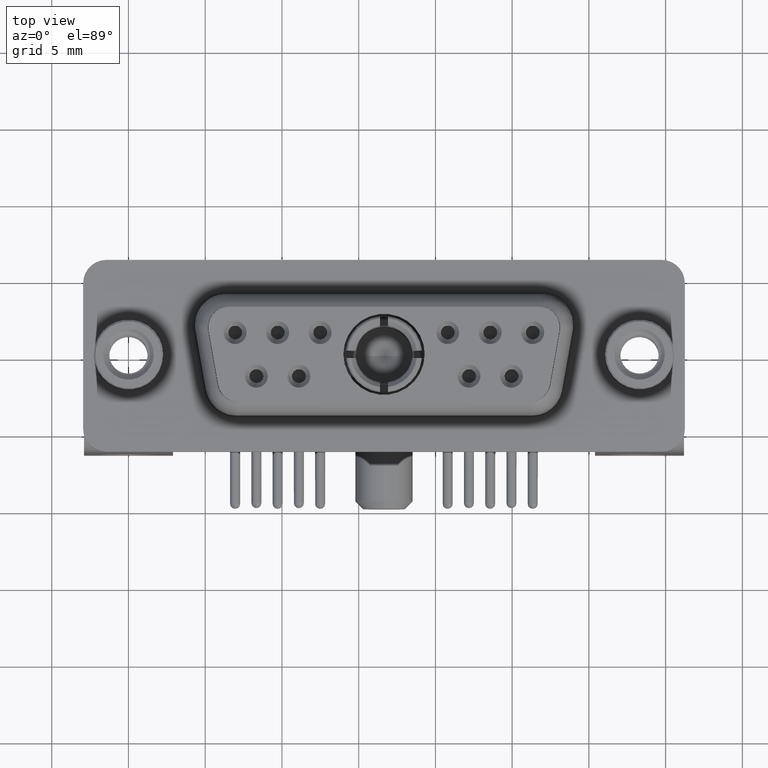
[diagram: clean part render]
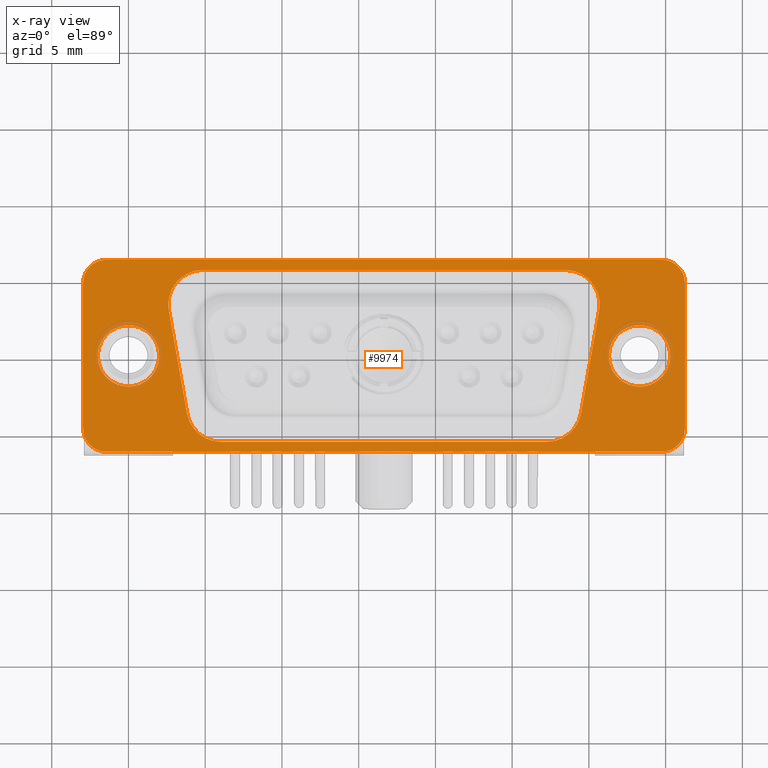
[diagram: x-ray — body ghosted, one internal face saturated and labeled with its STEP entity id]
A machine part, top view, then the same camera in x-ray: the body is ghosted and one INTERNAL B-rep face — a face not visible from any outside direction — is saturated and labeled: STEP entity #9974.
In plain terms, the highlighted planar face has unit normal (0, 0, -1).
Its self-contained STEP definition (entity closure, byte-faithful):
#34 = DIRECTION ( 'NONE',  ( 0.0000000000000000000, 0.0000000000000000000, 1.000000000000000000 ) ) ;
#319 = CARTESIAN_POINT ( 'NONE',  ( 34.75000000000000711, -6.250000000000000888, 0.0000000000000000000 ) ) ;
#365 = CARTESIAN_POINT ( 'NONE',  ( 0.0000000000000000000, 0.0000000000000000000, 0.0000000000000000000 ) ) ;
#486 = CARTESIAN_POINT ( 'NONE',  ( 2.600000000000003197, 3.350000000000004086, 0.0000000000000000000 ) ) ;
#747 = CIRCLE ( 'NONE', #9634, 1.500000000000001332 ) ;
#815 = CARTESIAN_POINT ( 'NONE',  ( 0.0000000000000000000, 0.0000000000000000000, 0.0000000000000000000 ) ) ;
#837 = FACE_OUTER_BOUND ( 'NONE', #6087, .T. ) ;
#1074 = DIRECTION ( 'NONE',  ( 1.000000000000000000, 0.0000000000000000000, 0.0000000000000000000 ) ) ;
#1125 = VERTEX_POINT ( 'NONE', #13671 ) ;
#1160 = DIRECTION ( 'NONE',  ( -0.0000000000000000000, 0.0000000000000000000, -1.000000000000000000 ) ) ;
#1331 = VERTEX_POINT ( 'NONE', #10976 ) ;
#1471 = CARTESIAN_POINT ( 'NONE',  ( -1.449999999999993072, 4.749999999999996447, 0.0000000000000000000 ) ) ;
#1534 = CARTESIAN_POINT ( 'NONE',  ( -1.449999999999993072, 6.249999999999996447, 0.0000000000000000000 ) ) ;
#1644 = VERTEX_POINT ( 'NONE', #9229 ) ;
#1733 = VECTOR ( 'NONE', #2791, 1000.000000000000000 ) ;
#1801 = DIRECTION ( 'NONE',  ( -1.000000000000000000, 0.0000000000000000000, 0.0000000000000000000 ) ) ;
#1850 = AXIS2_PLACEMENT_3D ( 'NONE', #14512, #21116, #21018 ) ;
#1894 = EDGE_CURVE ( 'NONE', #3123, #1644, #2006, .T. ) ;
#1960 = VERTEX_POINT ( 'NONE', #19482 ) ;
#2006 = CIRCLE ( 'NONE', #15710, 1.499999999999999556 ) ;
#2034 = EDGE_LOOP ( 'NONE', ( #15619, #17883 ) ) ;
#2103 = VECTOR ( 'NONE', #14890, 1000.000000000000000 ) ;
#2141 = LINE ( 'NONE', #13534, #11688 ) ;
#2173 = CARTESIAN_POINT ( 'NONE',  ( 6.031390770746672736, -5.600000000000011191, 0.0000000000000000000 ) ) ;
#2214 = VERTEX_POINT ( 'NONE', #1534 ) ;
#2340 = VERTEX_POINT ( 'NONE', #16447 ) ;
#2375 = ORIENTED_EDGE ( 'NONE', *, *, #3332, .F. ) ;
#2385 = EDGE_CURVE ( 'NONE', #4755, #17501, #2710, .T. ) ;
#2498 = DIRECTION ( 'NONE',  ( 1.000000000000000000, 0.0000000000000000000, 0.0000000000000000000 ) ) ;
#2575 = VERTEX_POINT ( 'NONE', #9578 ) ;
#2710 = CIRCLE ( 'NONE', #11634, 2.249999999999996003 ) ;
#2791 = DIRECTION ( 'NONE',  ( -1.000000000000000000, -1.437616140312271115E-16, 0.0000000000000000000 ) ) ;
#2915 = LINE ( 'NONE', #19606, #16310 ) ;
#2991 = CARTESIAN_POINT ( 'NONE',  ( 35.29999999999999005, 0.0000000000000000000, 0.0000000000000000000 ) ) ;
#3049 = ORIENTED_EDGE ( 'NONE', *, *, #12165, .T. ) ;
#3109 = ORIENTED_EDGE ( 'NONE', *, *, #9501, .F. ) ;
#3123 = VERTEX_POINT ( 'NONE', #17585 ) ;
#3215 = DIRECTION ( 'NONE',  ( 0.1736481776669248911, -0.9848077530122090195, -0.0000000000000000000 ) ) ;
#3275 = DIRECTION ( 'NONE',  ( -1.000000000000000000, 0.0000000000000000000, 0.0000000000000000000 ) ) ;
#3311 = CARTESIAN_POINT ( 'NONE',  ( -1.449999999999993072, -4.750000000000005329, 0.0000000000000000000 ) ) ;
#3330 = LINE ( 'NONE', #16410, #5159 ) ;
#3332 = EDGE_CURVE ( 'NONE', #10247, #8324, #14790, .T. ) ;
#3354 = ORIENTED_EDGE ( 'NONE', *, *, #2385, .F. ) ;
#3442 = ORIENTED_EDGE ( 'NONE', *, *, #9745, .F. ) ;
#3474 = CIRCLE ( 'NONE', #17846, 1.999999999999994893 ) ;
#3531 = LINE ( 'NONE', #10090, #11023 ) ;
#3650 = CARTESIAN_POINT ( 'NONE',  ( 34.75000000000000711, -4.750000000000000888, 0.0000000000000000000 ) ) ;
#3878 = VERTEX_POINT ( 'NONE', #19621 ) ;
#4049 = EDGE_CURVE ( 'NONE', #1960, #2214, #20560, .T. ) ;
#4100 = CARTESIAN_POINT ( 'NONE',  ( 34.75000000000000711, 4.750000000000000888, 0.0000000000000000000 ) ) ;
#4103 = VERTEX_POINT ( 'NONE', #17373 ) ;
#4189 = ORIENTED_EDGE ( 'NONE', *, *, #19727, .T. ) ;
#4296 = EDGE_CURVE ( 'NONE', #12038, #16322, #3474, .T. ) ;
#4297 = EDGE_CURVE ( 'NONE', #4103, #4755, #3531, .T. ) ;
#4565 = CIRCLE ( 'NONE', #1850, 2.250000000000001776 ) ;
#4755 = VERTEX_POINT ( 'NONE', #12361 ) ;
#4781 = CARTESIAN_POINT ( 'NONE',  ( 28.45000000000000995, 3.350000000000002309, 0.0000000000000000000 ) ) ;
#5027 = CARTESIAN_POINT ( 'NONE',  ( 33.29999999999999716, 0.0000000000000000000, 0.0000000000000000000 ) ) ;
#5159 = VECTOR ( 'NONE', #10422, 1000.000000000000000 ) ;
#5162 = CIRCLE ( 'NONE', #9976, 2.250000000000003997 ) ;
#5220 = ORIENTED_EDGE ( 'NONE', *, *, #4049, .T. ) ;
#5259 = ORIENTED_EDGE ( 'NONE', *, *, #10523, .F. ) ;
#5624 = ORIENTED_EDGE ( 'NONE', *, *, #4296, .F. ) ;
#5779 = DIRECTION ( 'NONE',  ( -1.000000000000000000, 0.0000000000000000000, 0.0000000000000000000 ) ) ;
#5792 = EDGE_CURVE ( 'NONE', #2214, #11964, #12450, .T. ) ;
#5993 = VECTOR ( 'NONE', #15432, 1000.000000000000000 ) ;
#6087 = EDGE_LOOP ( 'NONE', ( #14669, #4189, #13466, #6974, #3049, #5220, #19645, #13675 ) ) ;
#6414 = DIRECTION ( 'NONE',  ( 0.0000000000000000000, 0.0000000000000000000, 1.000000000000000000 ) ) ;
#6499 = DIRECTION ( 'NONE',  ( 1.000000000000000000, 0.0000000000000000000, 0.0000000000000000000 ) ) ;
#6686 = CARTESIAN_POINT ( 'NONE',  ( 4.850000000000006750, 3.350000000000004086, 0.0000000000000000000 ) ) ;
#6750 = CIRCLE ( 'NONE', #8827, 2.250000000000003997 ) ;
#6805 = DIRECTION ( 'NONE',  ( 1.000000000000000000, 0.0000000000000000000, 0.0000000000000000000 ) ) ;
#6951 = ORIENTED_EDGE ( 'NONE', *, *, #4297, .F. ) ;
#6974 = ORIENTED_EDGE ( 'NONE', *, *, #16456, .T. ) ;
#7433 = ORIENTED_EDGE ( 'NONE', *, *, #14429, .F. ) ;
#7800 = DIRECTION ( 'NONE',  ( 0.0000000000000000000, 0.0000000000000000000, 1.000000000000000000 ) ) ;
#7940 = DIRECTION ( 'NONE',  ( 1.000000000000000000, -0.0000000000000000000, -0.0000000000000000000 ) ) ;
#8324 = VERTEX_POINT ( 'NONE', #9566 ) ;
#8335 = CARTESIAN_POINT ( 'NONE',  ( 36.25000000000001421, -4.750000000000000888, 0.0000000000000000000 ) ) ;
#8520 = DIRECTION ( 'NONE',  ( 0.0000000000000000000, 0.0000000000000000000, 1.000000000000000000 ) ) ;
#8619 = CARTESIAN_POINT ( 'NONE',  ( -2.949999999999992628, 4.749999999999996447, 0.0000000000000000000 ) ) ;
#8827 = AXIS2_PLACEMENT_3D ( 'NONE', #20633, #12110, #10813 ) ;
#8832 = DIRECTION ( 'NONE',  ( -1.000000000000000000, 0.0000000000000000000, 0.0000000000000000000 ) ) ;
#8901 = VERTEX_POINT ( 'NONE', #13483 ) ;
#8914 = AXIS2_PLACEMENT_3D ( 'NONE', #4100, #17189, #2498 ) ;
#9102 = LINE ( 'NONE', #16928, #5993 ) ;
#9229 = CARTESIAN_POINT ( 'NONE',  ( -1.449999999999992850, -6.250000000000004441, 0.0000000000000000000 ) ) ;
#9375 = ORIENTED_EDGE ( 'NONE', *, *, #12420, .F. ) ;
#9458 = CARTESIAN_POINT ( 'NONE',  ( 34.75000000000000711, 6.250000000000000888, 0.0000000000000000000 ) ) ;
#9501 = EDGE_CURVE ( 'NONE', #16322, #12038, #20407, .T. ) ;
#9566 = CARTESIAN_POINT ( 'NONE',  ( 4.850000000000006750, 5.600000000000003197, 0.0000000000000000000 ) ) ;
#9578 = CARTESIAN_POINT ( 'NONE',  ( 36.25000000000001421, -4.750000000000000888, 0.0000000000000000000 ) ) ;
#9634 = AXIS2_PLACEMENT_3D ( 'NONE', #3650, #11819, #20037 ) ;
#9644 = ORIENTED_EDGE ( 'NONE', *, *, #16004, .F. ) ;
#9745 = EDGE_CURVE ( 'NONE', #17501, #13655, #2915, .T. ) ;
#9746 = DIRECTION ( 'NONE',  ( 0.0000000000000000000, 0.0000000000000000000, 1.000000000000000000 ) ) ;
#9760 = CARTESIAN_POINT ( 'NONE',  ( -1.449999999999993072, 5.600000000000003197, 0.0000000000000000000 ) ) ;
#9852 = CIRCLE ( 'NONE', #13973, 2.000000000000000000 ) ;
#9974 = ADVANCED_FACE ( 'NONE', ( #17466, #15757, #12240, #837 ), #10734, .F. ) ;
#9976 = AXIS2_PLACEMENT_3D ( 'NONE', #6686, #8520, #3275 ) ;
#10090 = CARTESIAN_POINT ( 'NONE',  ( 2.634182555722532904, 2.959291600249425613, 1.084202172485504434E-16 ) ) ;
#10247 = VERTEX_POINT ( 'NONE', #11357 ) ;
#10422 = DIRECTION ( 'NONE',  ( -0.0000000000000000000, -1.000000000000000000, -0.0000000000000000000 ) ) ;
#10523 = EDGE_CURVE ( 'NONE', #8324, #12933, #6750, .T. ) ;
#10569 = EDGE_CURVE ( 'NONE', #1331, #3878, #9852, .T. ) ;
#10734 = PLANE ( 'NONE',  #14968 ) ;
#10813 = DIRECTION ( 'NONE',  ( -1.000000000000000000, 0.0000000000000000000, 0.0000000000000000000 ) ) ;
#10976 = CARTESIAN_POINT ( 'NONE',  ( -2.000000000000000000, 2.449293598294706414E-16, 0.0000000000000000000 ) ) ;
#11023 = VECTOR ( 'NONE', #3215, 1000.000000000000114 ) ;
#11357 = CARTESIAN_POINT ( 'NONE',  ( 28.45000000000000995, 5.600000000000003197, 0.0000000000000000000 ) ) ;
#11485 = AXIS2_PLACEMENT_3D ( 'NONE', #4781, #7800, #14349 ) ;
#11634 = AXIS2_PLACEMENT_3D ( 'NONE', #19644, #18147, #8832 ) ;
#11688 = VECTOR ( 'NONE', #18429, 1000.000000000000000 ) ;
#11819 = DIRECTION ( 'NONE',  ( 0.0000000000000000000, 0.0000000000000000000, 1.000000000000000000 ) ) ;
#11964 = VERTEX_POINT ( 'NONE', #8619 ) ;
#12038 = VERTEX_POINT ( 'NONE', #15387 ) ;
#12110 = DIRECTION ( 'NONE',  ( 0.0000000000000000000, 0.0000000000000000000, 1.000000000000000000 ) ) ;
#12165 = EDGE_CURVE ( 'NONE', #1125, #1960, #20863, .T. ) ;
#12240 = FACE_BOUND ( 'NONE', #2034, .T. ) ;
#12361 = CARTESIAN_POINT ( 'NONE',  ( 3.815573326469205107, -3.740708399750589219, 0.0000000000000000000 ) ) ;
#12420 = EDGE_CURVE ( 'NONE', #13655, #2340, #4565, .T. ) ;
#12450 = CIRCLE ( 'NONE', #20621, 1.499999999999999556 ) ;
#12567 = AXIS2_PLACEMENT_3D ( 'NONE', #15783, #13969, #1074 ) ;
#12933 = VERTEX_POINT ( 'NONE', #486 ) ;
#13201 = DIRECTION ( 'NONE',  ( -1.000000000000000000, 0.0000000000000000000, 0.0000000000000000000 ) ) ;
#13261 = CIRCLE ( 'NONE', #11485, 2.249999999999998668 ) ;
#13413 = DIRECTION ( 'NONE',  ( 1.000000000000000000, 0.0000000000000000000, 0.0000000000000000000 ) ) ;
#13466 = ORIENTED_EDGE ( 'NONE', *, *, #15881, .T. ) ;
#13483 = CARTESIAN_POINT ( 'NONE',  ( 30.66581744427747935, 2.959291600249425169, 0.0000000000000000000 ) ) ;
#13534 = CARTESIAN_POINT ( 'NONE',  ( 29.48442667353081603, -3.740708399750586111, 0.0000000000000000000 ) ) ;
#13655 = VERTEX_POINT ( 'NONE', #16325 ) ;
#13671 = CARTESIAN_POINT ( 'NONE',  ( 36.25000000000001421, 4.750000000000000888, 0.0000000000000000000 ) ) ;
#13675 = ORIENTED_EDGE ( 'NONE', *, *, #16027, .T. ) ;
#13969 = DIRECTION ( 'NONE',  ( 0.0000000000000000000, 0.0000000000000000000, 1.000000000000000000 ) ) ;
#13973 = AXIS2_PLACEMENT_3D ( 'NONE', #815, #15733, #14128 ) ;
#14128 = DIRECTION ( 'NONE',  ( 1.000000000000000000, 0.0000000000000000000, 0.0000000000000000000 ) ) ;
#14349 = DIRECTION ( 'NONE',  ( -1.000000000000000000, 0.0000000000000000000, 0.0000000000000000000 ) ) ;
#14429 = EDGE_CURVE ( 'NONE', #12933, #4103, #5162, .T. ) ;
#14512 = CARTESIAN_POINT ( 'NONE',  ( 27.26860922925333952, -3.350000000000007638, 0.0000000000000000000 ) ) ;
#14669 = ORIENTED_EDGE ( 'NONE', *, *, #1894, .T. ) ;
#14786 = DIRECTION ( 'NONE',  ( 0.0000000000000000000, 0.0000000000000000000, 1.000000000000000000 ) ) ;
#14790 = LINE ( 'NONE', #9760, #19162 ) ;
#14890 = DIRECTION ( 'NONE',  ( 0.0000000000000000000, 1.000000000000000000, 0.0000000000000000000 ) ) ;
#14941 = ORIENTED_EDGE ( 'NONE', *, *, #21164, .F. ) ;
#14968 = AXIS2_PLACEMENT_3D ( 'NONE', #17361, #1160, #5779 ) ;
#15020 = VERTEX_POINT ( 'NONE', #319 ) ;
#15387 = CARTESIAN_POINT ( 'NONE',  ( 31.30000000000000071, 2.449293598294701977E-16, 0.0000000000000000000 ) ) ;
#15432 = DIRECTION ( 'NONE',  ( 1.000000000000000000, 9.584107602081808255E-17, -0.0000000000000000000 ) ) ;
#15619 = ORIENTED_EDGE ( 'NONE', *, *, #20001, .F. ) ;
#15710 = AXIS2_PLACEMENT_3D ( 'NONE', #3311, #14786, #13201 ) ;
#15733 = DIRECTION ( 'NONE',  ( 0.0000000000000000000, 0.0000000000000000000, 1.000000000000000000 ) ) ;
#15757 = FACE_BOUND ( 'NONE', #19373, .T. ) ;
#15783 = CARTESIAN_POINT ( 'NONE',  ( 33.29999999999999716, 0.0000000000000000000, 0.0000000000000000000 ) ) ;
#15881 = EDGE_CURVE ( 'NONE', #15020, #2575, #747, .T. ) ;
#16004 = EDGE_CURVE ( 'NONE', #2340, #8901, #2141, .T. ) ;
#16027 = EDGE_CURVE ( 'NONE', #11964, #3123, #3330, .T. ) ;
#16310 = VECTOR ( 'NONE', #7940, 1000.000000000000000 ) ;
#16322 = VERTEX_POINT ( 'NONE', #2991 ) ;
#16325 = CARTESIAN_POINT ( 'NONE',  ( 27.26860922925333952, -5.600000000000008527, 0.0000000000000000000 ) ) ;
#16410 = CARTESIAN_POINT ( 'NONE',  ( -2.949999999999992628, -4.750000000000005329, 0.0000000000000000000 ) ) ;
#16447 = CARTESIAN_POINT ( 'NONE',  ( 29.48442667353081603, -3.740708399750586111, 0.0000000000000000000 ) ) ;
#16456 = EDGE_CURVE ( 'NONE', #2575, #1125, #19578, .T. ) ;
#16928 = CARTESIAN_POINT ( 'NONE',  ( 34.75000000000000711, -6.250000000000000888, 0.0000000000000000000 ) ) ;
#17189 = DIRECTION ( 'NONE',  ( 0.0000000000000000000, 0.0000000000000000000, 1.000000000000000000 ) ) ;
#17286 = CIRCLE ( 'NONE', #20365, 2.000000000000000000 ) ;
#17361 = CARTESIAN_POINT ( 'NONE',  ( -1.449999999999993072, -4.750000000000005329, 0.0000000000000000000 ) ) ;
#17373 = CARTESIAN_POINT ( 'NONE',  ( 2.634182555722525798, 2.959291600249424725, 0.0000000000000000000 ) ) ;
#17466 = FACE_BOUND ( 'NONE', #20185, .T. ) ;
#17501 = VERTEX_POINT ( 'NONE', #2173 ) ;
#17585 = CARTESIAN_POINT ( 'NONE',  ( -2.949999999999992628, -4.750000000000005329, 0.0000000000000000000 ) ) ;
#17846 = AXIS2_PLACEMENT_3D ( 'NONE', #5027, #6414, #13413 ) ;
#17883 = ORIENTED_EDGE ( 'NONE', *, *, #10569, .F. ) ;
#18147 = DIRECTION ( 'NONE',  ( 0.0000000000000000000, 0.0000000000000000000, 1.000000000000000000 ) ) ;
#18429 = DIRECTION ( 'NONE',  ( 0.1736481776669229204, 0.9848077530122093526, -0.0000000000000000000 ) ) ;
#19162 = VECTOR ( 'NONE', #1801, 1000.000000000000000 ) ;
#19373 = EDGE_LOOP ( 'NONE', ( #3109, #5624 ) ) ;
#19482 = CARTESIAN_POINT ( 'NONE',  ( 34.75000000000000711, 6.250000000000001776, 0.0000000000000000000 ) ) ;
#19578 = LINE ( 'NONE', #8335, #2103 ) ;
#19606 = CARTESIAN_POINT ( 'NONE',  ( -1.449999999999993072, -5.600000000000011191, 0.0000000000000000000 ) ) ;
#19621 = CARTESIAN_POINT ( 'NONE',  ( 2.000000000000000000, 0.0000000000000000000, 0.0000000000000000000 ) ) ;
#19644 = CARTESIAN_POINT ( 'NONE',  ( 6.031390770746672736, -3.350000000000011191, 0.0000000000000000000 ) ) ;
#19645 = ORIENTED_EDGE ( 'NONE', *, *, #5792, .T. ) ;
#19727 = EDGE_CURVE ( 'NONE', #1644, #15020, #9102, .T. ) ;
#20001 = EDGE_CURVE ( 'NONE', #3878, #1331, #17286, .T. ) ;
#20037 = DIRECTION ( 'NONE',  ( 1.000000000000000000, 0.0000000000000000000, 0.0000000000000000000 ) ) ;
#20185 = EDGE_LOOP ( 'NONE', ( #9644, #9375, #3442, #3354, #6951, #7433, #5259, #2375, #14941 ) ) ;
#20365 = AXIS2_PLACEMENT_3D ( 'NONE', #365, #34, #6805 ) ;
#20407 = CIRCLE ( 'NONE', #12567, 1.999999999999994893 ) ;
#20560 = LINE ( 'NONE', #9458, #1733 ) ;
#20621 = AXIS2_PLACEMENT_3D ( 'NONE', #1471, #9746, #6499 ) ;
#20633 = CARTESIAN_POINT ( 'NONE',  ( 4.850000000000006750, 3.350000000000004086, 0.0000000000000000000 ) ) ;
#20863 = CIRCLE ( 'NONE', #8914, 1.500000000000001332 ) ;
#21018 = DIRECTION ( 'NONE',  ( -1.000000000000000000, 0.0000000000000000000, 0.0000000000000000000 ) ) ;
#21116 = DIRECTION ( 'NONE',  ( 0.0000000000000000000, 0.0000000000000000000, 1.000000000000000000 ) ) ;
#21164 = EDGE_CURVE ( 'NONE', #8901, #10247, #13261, .T. ) ;